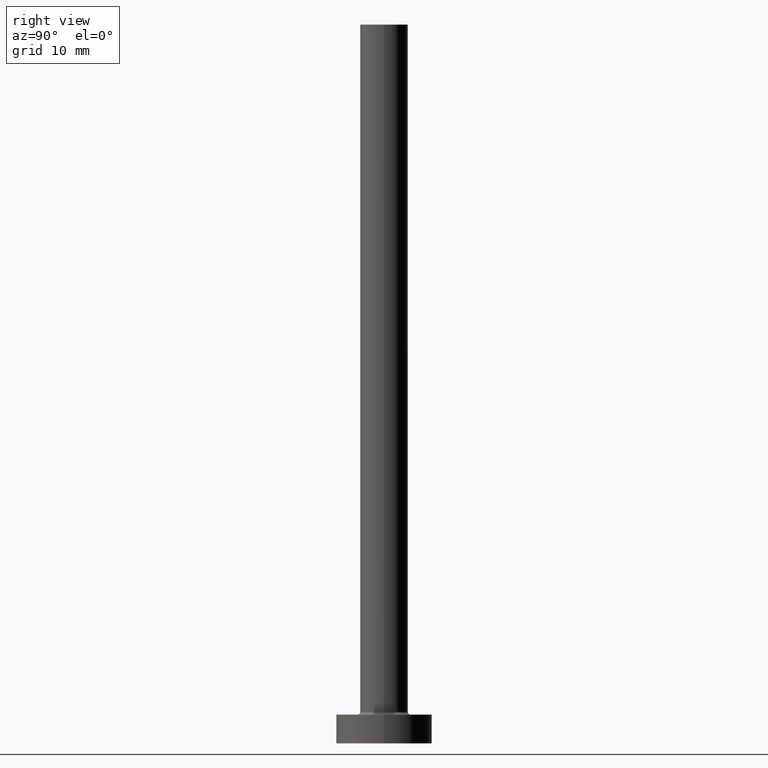
[diagram: clean part render]
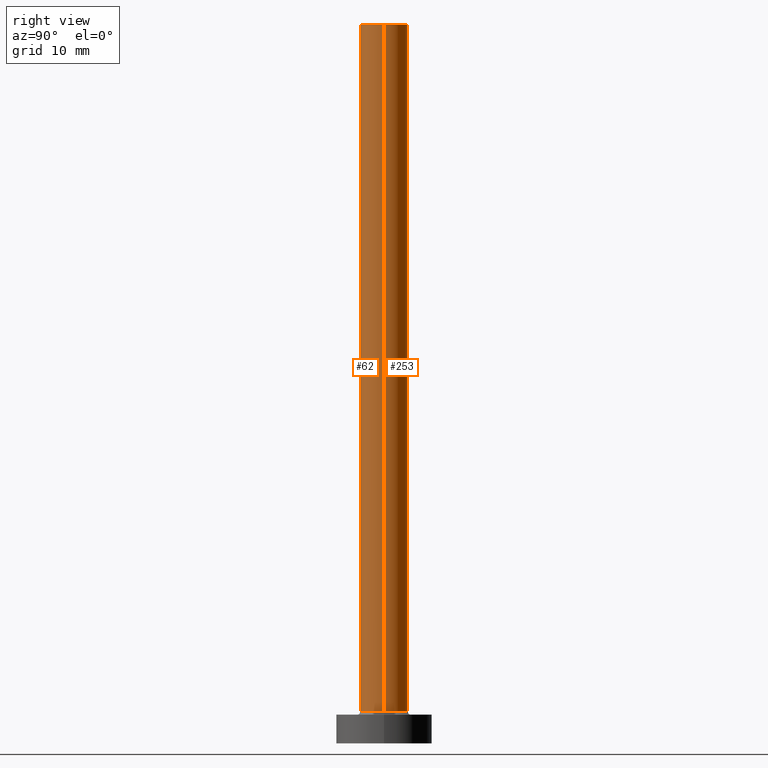
[diagram: same view with one multi-face feature highlighted, each face labeled with its STEP entity id]
A machine part, right view. The highlighted faces form ONE feature: a constant-radius fillet chain: 2 tangent blend faces with common blend radius 2.5 mm. The faces share edges in the B-rep.
Their STEP definitions:
[1] entity #62 (Cylinder):
#6 = AXIS2_PLACEMENT_3D ( 'NONE', #241, #185, #417 ) ;
#45 = VERTEX_POINT ( 'NONE', #146 ) ;
#52 = DIRECTION ( 'NONE',  ( 0.000000000000000000, 0.000000000000000000, 1.000000000000000000 ) ) ;
#53 = LINE ( 'NONE', #335, #404 ) ;
#54 = EDGE_CURVE ( 'NONE', #422, #311, #357, .T. ) ;
#62 = ADVANCED_FACE ( 'NONE', ( #360 ), #110, .T. ) ;
#64 = CARTESIAN_POINT ( 'NONE',  ( 2.500000000000000000, 3.061616997868383141E-16, 3.299999999999997158 ) ) ;
#85 = CARTESIAN_POINT ( 'NONE',  ( 0.000000000000000000, 0.000000000000000000, 3.299999999999997158 ) ) ;
#88 = EDGE_CURVE ( 'NONE', #422, #45, #265, .T. ) ;
#109 = AXIS2_PLACEMENT_3D ( 'NONE', #85, #52, #370 ) ;
#110 = CYLINDRICAL_SURFACE ( 'NONE', #118, 2.500000000000000000 ) ;
#118 = AXIS2_PLACEMENT_3D ( 'NONE', #217, #206, #273 ) ;
#130 = EDGE_CURVE ( 'NONE', #45, #290, #53, .T. ) ;
#146 = CARTESIAN_POINT ( 'NONE',  ( 2.500000000000000000, 3.061616997868383141E-16, 75.00000000000000000 ) ) ;
#149 = VECTOR ( 'NONE', #212, 1000.000000000000000 ) ;
#161 = EDGE_CURVE ( 'NONE', #311, #290, #384, .T. ) ;
#185 = DIRECTION ( 'NONE',  ( 0.000000000000000000, 0.000000000000000000, 1.000000000000000000 ) ) ;
#195 = ORIENTED_EDGE ( 'NONE', *, *, #54, .T. ) ;
#202 = CARTESIAN_POINT ( 'NONE',  ( -2.500000000000000000, 0.000000000000000000, 3.299999999999997158 ) ) ;
#206 = DIRECTION ( 'NONE',  ( -0.000000000000000000, -0.000000000000000000, -1.000000000000000000 ) ) ;
#212 = DIRECTION ( 'NONE',  ( -0.000000000000000000, -0.000000000000000000, -1.000000000000000000 ) ) ;
#217 = CARTESIAN_POINT ( 'NONE',  ( 0.000000000000000000, 0.000000000000000000, 75.00000000000000000 ) ) ;
#218 = DIRECTION ( 'NONE',  ( -0.000000000000000000, -0.000000000000000000, -1.000000000000000000 ) ) ;
#241 = CARTESIAN_POINT ( 'NONE',  ( 0.000000000000000000, 0.000000000000000000, 75.00000000000000000 ) ) ;
#245 = CARTESIAN_POINT ( 'NONE',  ( -2.500000000000000000, 0.000000000000000000, 75.00000000000000000 ) ) ;
#265 = CIRCLE ( 'NONE', #6, 2.500000000000000000 ) ;
#273 = DIRECTION ( 'NONE',  ( -1.000000000000000000, 0.000000000000000000, 0.000000000000000000 ) ) ;
#275 = ORIENTED_EDGE ( 'NONE', *, *, #130, .F. ) ;
#290 = VERTEX_POINT ( 'NONE', #64 ) ;
#311 = VERTEX_POINT ( 'NONE', #202 ) ;
#335 = CARTESIAN_POINT ( 'NONE',  ( 2.500000000000000000, 3.061616997868383141E-16, 75.00000000000000000 ) ) ;
#350 = CARTESIAN_POINT ( 'NONE',  ( -2.500000000000000000, 0.000000000000000000, 75.00000000000000000 ) ) ;
#354 = EDGE_LOOP ( 'NONE', ( #275, #401, #195, #445 ) ) ;
#357 = LINE ( 'NONE', #245, #149 ) ;
#360 = FACE_OUTER_BOUND ( 'NONE', #354, .T. ) ;
#370 = DIRECTION ( 'NONE',  ( 1.000000000000000000, 0.000000000000000000, 0.000000000000000000 ) ) ;
#384 = CIRCLE ( 'NONE', #109, 2.500000000000000000 ) ;
#401 = ORIENTED_EDGE ( 'NONE', *, *, #88, .F. ) ;
#404 = VECTOR ( 'NONE', #218, 1000.000000000000000 ) ;
#417 = DIRECTION ( 'NONE',  ( 1.000000000000000000, 0.000000000000000000, 0.000000000000000000 ) ) ;
#422 = VERTEX_POINT ( 'NONE', #350 ) ;
#445 = ORIENTED_EDGE ( 'NONE', *, *, #161, .T. ) ;
[2] entity #253 (Cylinder):
#21 = FACE_OUTER_BOUND ( 'NONE', #216, .T. ) ;
#45 = VERTEX_POINT ( 'NONE', #146 ) ;
#51 = AXIS2_PLACEMENT_3D ( 'NONE', #369, #89, #250 ) ;
#53 = LINE ( 'NONE', #335, #404 ) ;
#54 = EDGE_CURVE ( 'NONE', #422, #311, #357, .T. ) ;
#60 = DIRECTION ( 'NONE',  ( -0.000000000000000000, -0.000000000000000000, -1.000000000000000000 ) ) ;
#64 = CARTESIAN_POINT ( 'NONE',  ( 2.500000000000000000, 3.061616997868383141E-16, 3.299999999999997158 ) ) ;
#89 = DIRECTION ( 'NONE',  ( 0.000000000000000000, 0.000000000000000000, 1.000000000000000000 ) ) ;
#93 = DIRECTION ( 'NONE',  ( 1.000000000000000000, 0.000000000000000000, 0.000000000000000000 ) ) ;
#100 = CARTESIAN_POINT ( 'NONE',  ( 0.000000000000000000, 0.000000000000000000, 75.00000000000000000 ) ) ;
#123 = AXIS2_PLACEMENT_3D ( 'NONE', #379, #60, #309 ) ;
#130 = EDGE_CURVE ( 'NONE', #45, #290, #53, .T. ) ;
#146 = CARTESIAN_POINT ( 'NONE',  ( 2.500000000000000000, 3.061616997868383141E-16, 75.00000000000000000 ) ) ;
#149 = VECTOR ( 'NONE', #212, 1000.000000000000000 ) ;
#154 = EDGE_CURVE ( 'NONE', #290, #311, #209, .T. ) ;
#202 = CARTESIAN_POINT ( 'NONE',  ( -2.500000000000000000, 0.000000000000000000, 3.299999999999997158 ) ) ;
#207 = ORIENTED_EDGE ( 'NONE', *, *, #319, .F. ) ;
#209 = CIRCLE ( 'NONE', #51, 2.500000000000000000 ) ;
#212 = DIRECTION ( 'NONE',  ( -0.000000000000000000, -0.000000000000000000, -1.000000000000000000 ) ) ;
#216 = EDGE_LOOP ( 'NONE', ( #207, #418, #362, #315 ) ) ;
#218 = DIRECTION ( 'NONE',  ( -0.000000000000000000, -0.000000000000000000, -1.000000000000000000 ) ) ;
#233 = DIRECTION ( 'NONE',  ( 0.000000000000000000, 0.000000000000000000, 1.000000000000000000 ) ) ;
#245 = CARTESIAN_POINT ( 'NONE',  ( -2.500000000000000000, 0.000000000000000000, 75.00000000000000000 ) ) ;
#250 = DIRECTION ( 'NONE',  ( 1.000000000000000000, 0.000000000000000000, 0.000000000000000000 ) ) ;
#253 = ADVANCED_FACE ( 'NONE', ( #21 ), #378, .T. ) ;
#255 = CIRCLE ( 'NONE', #439, 2.500000000000000000 ) ;
#290 = VERTEX_POINT ( 'NONE', #64 ) ;
#309 = DIRECTION ( 'NONE',  ( -1.000000000000000000, 0.000000000000000000, 0.000000000000000000 ) ) ;
#311 = VERTEX_POINT ( 'NONE', #202 ) ;
#315 = ORIENTED_EDGE ( 'NONE', *, *, #54, .F. ) ;
#319 = EDGE_CURVE ( 'NONE', #45, #422, #255, .T. ) ;
#335 = CARTESIAN_POINT ( 'NONE',  ( 2.500000000000000000, 3.061616997868383141E-16, 75.00000000000000000 ) ) ;
#350 = CARTESIAN_POINT ( 'NONE',  ( -2.500000000000000000, 0.000000000000000000, 75.00000000000000000 ) ) ;
#357 = LINE ( 'NONE', #245, #149 ) ;
#362 = ORIENTED_EDGE ( 'NONE', *, *, #154, .T. ) ;
#369 = CARTESIAN_POINT ( 'NONE',  ( 0.000000000000000000, 0.000000000000000000, 3.299999999999997158 ) ) ;
#378 = CYLINDRICAL_SURFACE ( 'NONE', #123, 2.500000000000000000 ) ;
#379 = CARTESIAN_POINT ( 'NONE',  ( 0.000000000000000000, 0.000000000000000000, 75.00000000000000000 ) ) ;
#404 = VECTOR ( 'NONE', #218, 1000.000000000000000 ) ;
#418 = ORIENTED_EDGE ( 'NONE', *, *, #130, .T. ) ;
#422 = VERTEX_POINT ( 'NONE', #350 ) ;
#439 = AXIS2_PLACEMENT_3D ( 'NONE', #100, #233, #93 ) ;